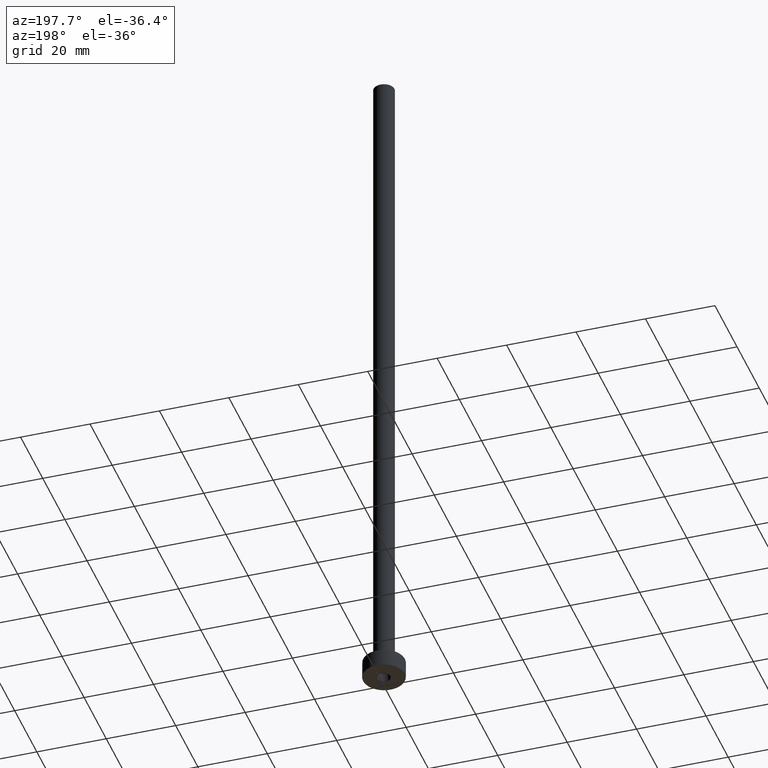
[diagram: clean part render]
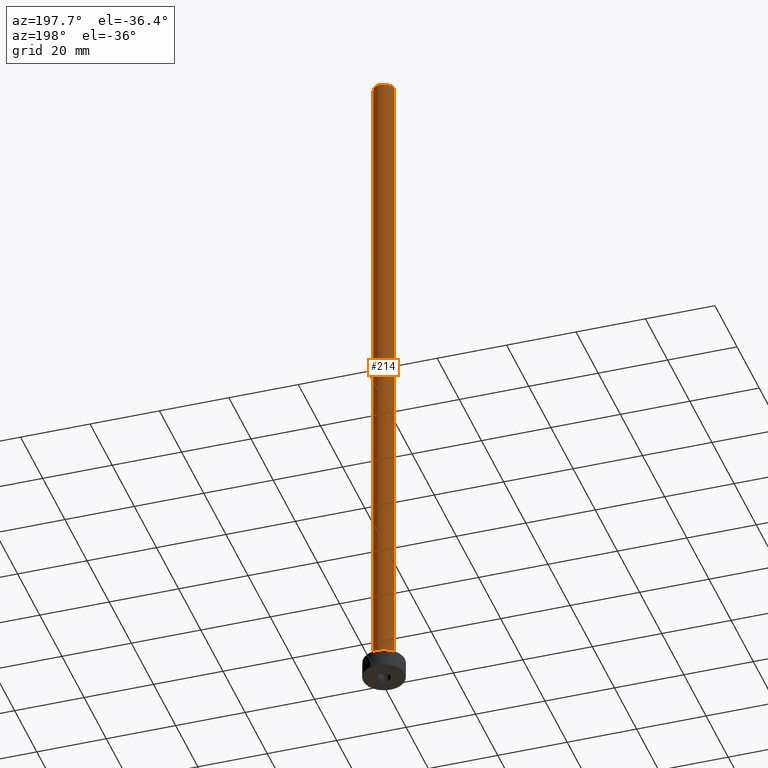
[diagram: same view with one face highlighted and labeled with its STEP entity id]
A machine part, auxiliary view. The second image highlights one B-rep face of the part: STEP entity #214.
In plain terms, the highlighted cylindrical surface (edge-blend (fillet) strip) has radius 3 mm, axis along (-0, -0, -1).
Its self-contained STEP definition (entity closure, byte-faithful):
#13 = DIRECTION ( 'NONE',  ( -0.000000000000000000, -0.000000000000000000, -1.000000000000000000 ) ) ;
#24 = ORIENTED_EDGE ( 'NONE', *, *, #67, .F. ) ;
#28 = EDGE_CURVE ( 'NONE', #126, #442, #146, .T. ) ;
#31 = VECTOR ( 'NONE', #240, 1000.000000000000000 ) ;
#35 = ORIENTED_EDGE ( 'NONE', *, *, #362, .T. ) ;
#54 = EDGE_LOOP ( 'NONE', ( #24, #447, #35, #229 ) ) ;
#55 = CARTESIAN_POINT ( 'NONE',  ( 3.000000000000000444, 3.673940397442060361E-16, 200.0000000000000000 ) ) ;
#64 = CARTESIAN_POINT ( 'NONE',  ( -3.000000000000000444, 0.000000000000000000, 200.0000000000000000 ) ) ;
#67 = EDGE_CURVE ( 'NONE', #126, #287, #115, .T. ) ;
#93 = DIRECTION ( 'NONE',  ( 1.000000000000000000, 0.000000000000000000, 0.000000000000000000 ) ) ;
#101 = VECTOR ( 'NONE', #369, 1000.000000000000000 ) ;
#106 = VERTEX_POINT ( 'NONE', #134 ) ;
#115 = CIRCLE ( 'NONE', #244, 3.000000000000000444 ) ;
#121 = CARTESIAN_POINT ( 'NONE',  ( 0.000000000000000000, 0.000000000000000000, 5.500000000000005329 ) ) ;
#126 = VERTEX_POINT ( 'NONE', #443 ) ;
#134 = CARTESIAN_POINT ( 'NONE',  ( -3.000000000000000444, 0.000000000000000000, 5.500000000000005329 ) ) ;
#146 = LINE ( 'NONE', #55, #101 ) ;
#155 = AXIS2_PLACEMENT_3D ( 'NONE', #332, #13, #225 ) ;
#156 = CIRCLE ( 'NONE', #202, 3.000000000000000444 ) ;
#161 = DIRECTION ( 'NONE',  ( 0.000000000000000000, 0.000000000000000000, 1.000000000000000000 ) ) ;
#184 = EDGE_CURVE ( 'NONE', #287, #106, #234, .T. ) ;
#202 = AXIS2_PLACEMENT_3D ( 'NONE', #121, #277, #349 ) ;
#214 = ADVANCED_FACE ( 'NONE', ( #252 ), #364, .T. ) ;
#225 = DIRECTION ( 'NONE',  ( -1.000000000000000000, 0.000000000000000000, 0.000000000000000000 ) ) ;
#229 = ORIENTED_EDGE ( 'NONE', *, *, #184, .F. ) ;
#234 = LINE ( 'NONE', #341, #31 ) ;
#240 = DIRECTION ( 'NONE',  ( -0.000000000000000000, -0.000000000000000000, -1.000000000000000000 ) ) ;
#244 = AXIS2_PLACEMENT_3D ( 'NONE', #375, #161, #93 ) ;
#252 = FACE_OUTER_BOUND ( 'NONE', #54, .T. ) ;
#277 = DIRECTION ( 'NONE',  ( 0.000000000000000000, 0.000000000000000000, 1.000000000000000000 ) ) ;
#287 = VERTEX_POINT ( 'NONE', #64 ) ;
#320 = CARTESIAN_POINT ( 'NONE',  ( 3.000000000000000444, 3.673940397442060361E-16, 5.500000000000005329 ) ) ;
#332 = CARTESIAN_POINT ( 'NONE',  ( 0.000000000000000000, 0.000000000000000000, 200.0000000000000000 ) ) ;
#341 = CARTESIAN_POINT ( 'NONE',  ( -3.000000000000000444, 0.000000000000000000, 200.0000000000000000 ) ) ;
#349 = DIRECTION ( 'NONE',  ( 1.000000000000000000, 0.000000000000000000, 0.000000000000000000 ) ) ;
#362 = EDGE_CURVE ( 'NONE', #442, #106, #156, .T. ) ;
#364 = CYLINDRICAL_SURFACE ( 'NONE', #155, 3.000000000000000444 ) ;
#369 = DIRECTION ( 'NONE',  ( -0.000000000000000000, -0.000000000000000000, -1.000000000000000000 ) ) ;
#375 = CARTESIAN_POINT ( 'NONE',  ( 0.000000000000000000, 0.000000000000000000, 200.0000000000000000 ) ) ;
#442 = VERTEX_POINT ( 'NONE', #320 ) ;
#443 = CARTESIAN_POINT ( 'NONE',  ( 3.000000000000000444, 3.673940397442060361E-16, 200.0000000000000000 ) ) ;
#447 = ORIENTED_EDGE ( 'NONE', *, *, #28, .T. ) ;